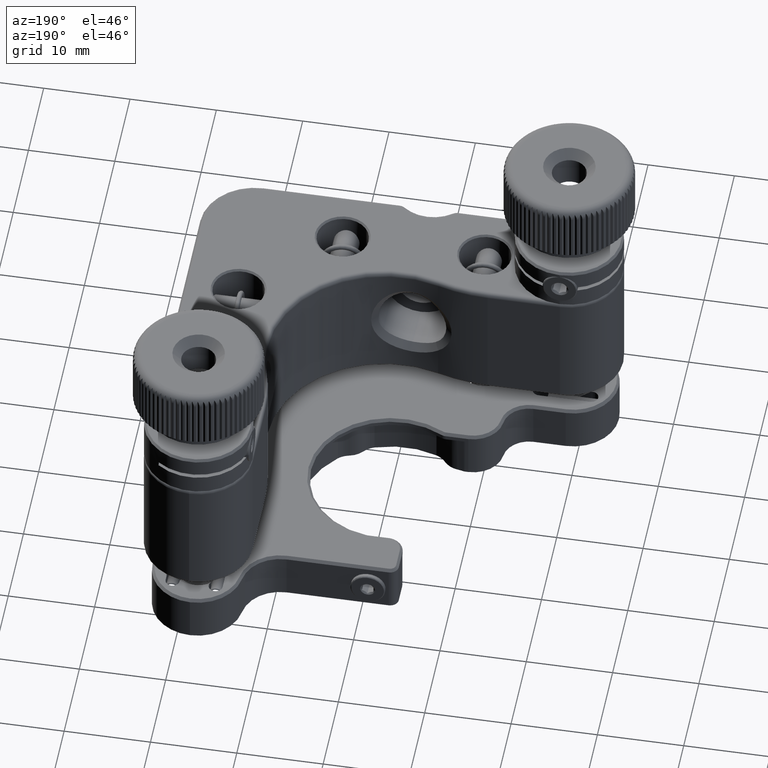
[diagram: clean part render]
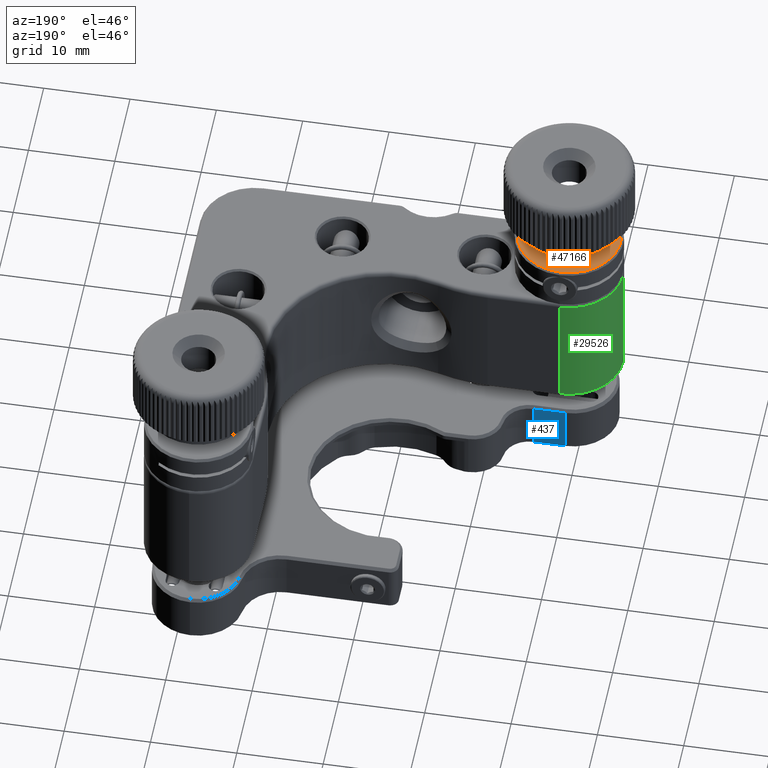
[diagram: same view with three faces highlighted in distinct colors, each labeled with its STEP entity id]
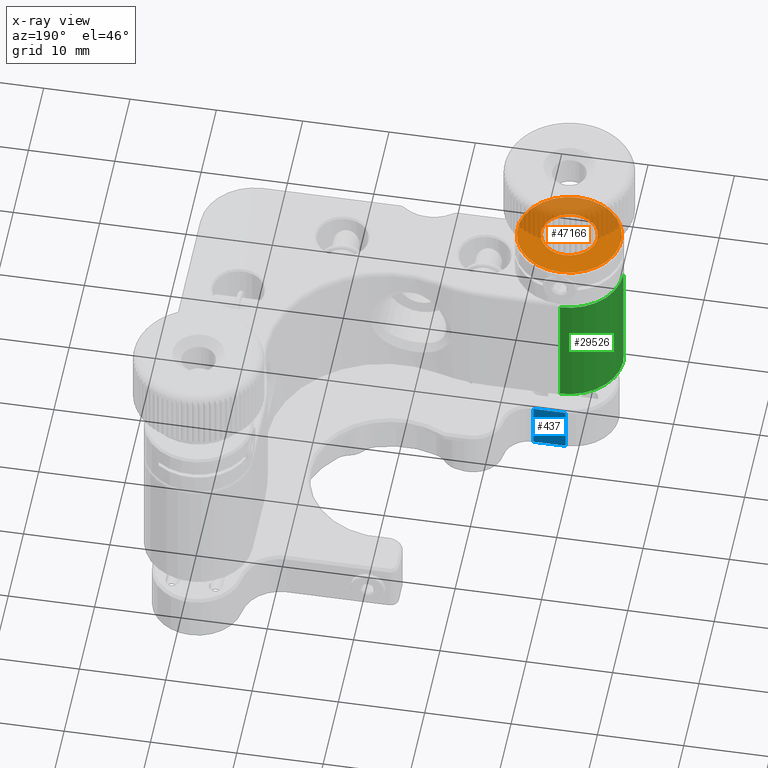
[diagram: x-ray of the same camera — body ghosted, the three highlighted faces saturated]
A machine part, auxiliary view with three faces highlighted in distinct colors.
The next image is the same camera in x-ray (body ghosted, the three faces saturated) — at least one of them is partly hidden behind the body in this view.
Their STEP definitions:

[orange] entity #47166 — the highlighted planar face has unit normal (0, 0, -1).
#3765 = EDGE_CURVE ( 'NONE', #31792, #13980, #12542, .T. ) ;
#4017 = AXIS2_PLACEMENT_3D ( 'NONE', #32181, #13321, #31568 ) ;
#5262 = CIRCLE ( 'NONE', #53810, 5.999999999999998224 ) ;
#7080 = EDGE_LOOP ( 'NONE', ( #33061, #32872 ) ) ;
#9874 = VERTEX_POINT ( 'NONE', #16946 ) ;
#10449 = EDGE_CURVE ( 'NONE', #9874, #48087, #5262, .T. ) ;
#10770 = EDGE_LOOP ( 'NONE', ( #19925, #50802 ) ) ;
#12277 = DIRECTION ( 'NONE',  ( 0.003448917964660402468, 0.9999940524647499274, 0.000000000000000000 ) ) ;
#12542 = CIRCLE ( 'NONE', #26850, 3.249999999999992450 ) ;
#13321 = DIRECTION ( 'NONE',  ( 0.000000000000000000, 0.000000000000000000, -1.000000000000000000 ) ) ;
#13601 = PLANE ( 'NONE',  #4017 ) ;
#13980 = VERTEX_POINT ( 'NONE', #33353 ) ;
#16746 = DIRECTION ( 'NONE',  ( 0.000000000000000000, 0.000000000000000000, -1.000000000000000000 ) ) ;
#16946 = CARTESIAN_POINT ( 'NONE',  ( -18.27069350778795709, -24.24996431478848535, 12.50000000000000000 ) ) ;
#17472 = DIRECTION ( 'NONE',  ( 0.003448917964659950573, 0.9999940524647499274, 0.000000000000000000 ) ) ;
#18435 = AXIS2_PLACEMENT_3D ( 'NONE', #20934, #16746, #12277 ) ;
#19925 = ORIENTED_EDGE ( 'NONE', *, *, #25062, .T. ) ;
#20934 = CARTESIAN_POINT ( 'NONE',  ( -18.25000000000000000, -18.24999999999998934, 12.50000000000000000 ) ) ;
#23160 = FACE_OUTER_BOUND ( 'NONE', #10770, .T. ) ;
#25062 = EDGE_CURVE ( 'NONE', #48087, #9874, #51876, .T. ) ;
#26850 = AXIS2_PLACEMENT_3D ( 'NONE', #45231, #54711, #58042 ) ;
#27041 = DIRECTION ( 'NONE',  ( 0.003448917964659950573, 0.9999940524647499274, 0.000000000000000000 ) ) ;
#28545 = CARTESIAN_POINT ( 'NONE',  ( -18.22930649221203936, -12.25003568521149155, 12.50000000000000000 ) ) ;
#31568 = DIRECTION ( 'NONE',  ( 0.003448917964660035574, 0.9999940524647498163, 0.000000000000000000 ) ) ;
#31792 = VERTEX_POINT ( 'NONE', #58842 ) ;
#32181 = CARTESIAN_POINT ( 'NONE',  ( -18.27155573727912596, -24.49996282790467461, 12.50000000000000000 ) ) ;
#32872 = ORIENTED_EDGE ( 'NONE', *, *, #44651, .T. ) ;
#33009 = CARTESIAN_POINT ( 'NONE',  ( -18.25000000000000000, -18.24999999999998934, 12.50000000000000000 ) ) ;
#33061 = ORIENTED_EDGE ( 'NONE', *, *, #3765, .T. ) ;
#33353 = CARTESIAN_POINT ( 'NONE',  ( -18.26120898338514564, -21.49998067051042128, 12.50000000000000000 ) ) ;
#41626 = DIRECTION ( 'NONE',  ( -0.000000000000000000, -0.000000000000000000, 1.000000000000000000 ) ) ;
#43222 = CIRCLE ( 'NONE', #18435, 3.249999999999992450 ) ;
#44651 = EDGE_CURVE ( 'NONE', #13980, #31792, #43222, .T. ) ;
#44671 = DIRECTION ( 'NONE',  ( -0.000000000000000000, -0.000000000000000000, 1.000000000000000000 ) ) ;
#44677 = FACE_BOUND ( 'NONE', #7080, .T. ) ;
#45231 = CARTESIAN_POINT ( 'NONE',  ( -18.25000000000000000, -18.24999999999998934, 12.50000000000000000 ) ) ;
#47166 = ADVANCED_FACE ( 'NONE', ( #23160, #44677 ), #13601, .F. ) ;
#48087 = VERTEX_POINT ( 'NONE', #28545 ) ;
#49682 = CARTESIAN_POINT ( 'NONE',  ( -18.25000000000000000, -18.24999999999998934, 12.50000000000000000 ) ) ;
#50802 = ORIENTED_EDGE ( 'NONE', *, *, #10449, .T. ) ;
#50942 = AXIS2_PLACEMENT_3D ( 'NONE', #49682, #44671, #17472 ) ;
#51876 = CIRCLE ( 'NONE', #50942, 5.999999999999998224 ) ;
#53810 = AXIS2_PLACEMENT_3D ( 'NONE', #33009, #41626, #27041 ) ;
#54711 = DIRECTION ( 'NONE',  ( 0.000000000000000000, 0.000000000000000000, -1.000000000000000000 ) ) ;
#58042 = DIRECTION ( 'NONE',  ( 0.003448917964660402468, 0.9999940524647499274, 0.000000000000000000 ) ) ;
#58842 = CARTESIAN_POINT ( 'NONE',  ( -18.23879101661485436, -15.00001932948955918, 12.50000000000000000 ) ) ;

[blue] entity #437 — the highlighted planar face has unit normal (-0, -1, -0).
#437 = ADVANCED_FACE ( 'NONE', ( #29866 ), #2651, .F. ) ;
#2051 = CARTESIAN_POINT ( 'NONE',  ( -23.99999999999999289, -12.99999999999994493, -11.29999999999999538 ) ) ;
#2651 = PLANE ( 'NONE',  #48368 ) ;
#2984 = CARTESIAN_POINT ( 'NONE',  ( -18.74999999999998579, -12.99999999999995381, -11.29999999999999716 ) ) ;
#7409 = DIRECTION ( 'NONE',  ( -1.787150674361884632E-15, -1.000000000000000000, -8.979424329623675569E-17 ) ) ;
#7880 = EDGE_CURVE ( 'NONE', #58281, #28675, #29313, .T. ) ;
#8824 = VECTOR ( 'NONE', #42933, 1000.000000000000000 ) ;
#9897 = VERTEX_POINT ( 'NONE', #26510 ) ;
#10421 = LINE ( 'NONE', #51271, #39775 ) ;
#11352 = EDGE_CURVE ( 'NONE', #22333, #58281, #40095, .T. ) ;
#14011 = EDGE_LOOP ( 'NONE', ( #52937, #25498, #54125, #57591 ) ) ;
#15466 = DIRECTION ( 'NONE',  ( -1.631065077482391831E-16, 8.979424329623703919E-17, -1.000000000000000000 ) ) ;
#15708 = EDGE_CURVE ( 'NONE', #9897, #22333, #10421, .T. ) ;
#18421 = CARTESIAN_POINT ( 'NONE',  ( -18.74999999999998579, -12.99999999999995381, -16.69999999999998508 ) ) ;
#19988 = CARTESIAN_POINT ( 'NONE',  ( -18.74999999999998579, -12.99999999999995381, -10.99999999999999645 ) ) ;
#22333 = VERTEX_POINT ( 'NONE', #59044 ) ;
#22792 = CARTESIAN_POINT ( 'NONE',  ( -18.74999999999998579, -12.99999999999995381, -16.69999999999998508 ) ) ;
#25498 = ORIENTED_EDGE ( 'NONE', *, *, #27312, .T. ) ;
#25604 = DIRECTION ( 'NONE',  ( 1.000000000000000000, -1.787150674361884632E-15, -1.631065077482393310E-16 ) ) ;
#26510 = CARTESIAN_POINT ( 'NONE',  ( -14.99999999999999467, -12.99999999999995737, -11.29999999999999716 ) ) ;
#27312 = EDGE_CURVE ( 'NONE', #28675, #9897, #37897, .T. ) ;
#28675 = VERTEX_POINT ( 'NONE', #2984 ) ;
#29313 = LINE ( 'NONE', #19988, #8824 ) ;
#29866 = FACE_OUTER_BOUND ( 'NONE', #14011, .T. ) ;
#33154 = DIRECTION ( 'NONE',  ( 1.000000000000000000, -1.787150674361884632E-15, -1.631065077482393310E-16 ) ) ;
#37897 = LINE ( 'NONE', #2051, #49091 ) ;
#39775 = VECTOR ( 'NONE', #15466, 1000.000000000000000 ) ;
#40095 = LINE ( 'NONE', #22792, #48019 ) ;
#42933 = DIRECTION ( 'NONE',  ( 1.631065077482391831E-16, -8.979424329623703919E-17, 1.000000000000000000 ) ) ;
#48019 = VECTOR ( 'NONE', #58262, 1000.000000000000000 ) ;
#48368 = AXIS2_PLACEMENT_3D ( 'NONE', #57215, #7409, #25604 ) ;
#49091 = VECTOR ( 'NONE', #33154, 1000.000000000000000 ) ;
#51271 = CARTESIAN_POINT ( 'NONE',  ( -14.99999999999999467, -12.99999999999995737, -10.99999999999999645 ) ) ;
#52937 = ORIENTED_EDGE ( 'NONE', *, *, #7880, .T. ) ;
#54125 = ORIENTED_EDGE ( 'NONE', *, *, #15708, .T. ) ;
#57215 = CARTESIAN_POINT ( 'NONE',  ( -23.99999999999999289, -12.99999999999994493, -10.99999999999999467 ) ) ;
#57591 = ORIENTED_EDGE ( 'NONE', *, *, #11352, .T. ) ;
#58262 = DIRECTION ( 'NONE',  ( -1.000000000000000000, 1.787150674361884632E-15, 1.631065077482393310E-16 ) ) ;
#58281 = VERTEX_POINT ( 'NONE', #18421 ) ;
#59044 = CARTESIAN_POINT ( 'NONE',  ( -14.99999999999999645, -12.99999999999995737, -16.69999999999998508 ) ) ;

[green] entity #29526 — the highlighted cylindrical surface (partial cylindrical patch) has radius 6.25 mm, axis along (0, 0, 1).
#497 = DIRECTION ( 'NONE',  ( 1.000000000000000000, 0.000000000000000000, 0.000000000000000000 ) ) ;
#2201 = VERTEX_POINT ( 'NONE', #17549 ) ;
#3857 = DIRECTION ( 'NONE',  ( 1.000000000000000000, 0.000000000000000000, 0.000000000000000000 ) ) ;
#4348 = ORIENTED_EDGE ( 'NONE', *, *, #5736, .F. ) ;
#4703 = CYLINDRICAL_SURFACE ( 'NONE', #51211, 6.250000000000000000 ) ;
#4960 = EDGE_CURVE ( 'NONE', #20389, #14100, #42141, .T. ) ;
#5581 = LINE ( 'NONE', #10340, #37033 ) ;
#5736 = EDGE_CURVE ( 'NONE', #2201, #5947, #5581, .T. ) ;
#5947 = VERTEX_POINT ( 'NONE', #38031 ) ;
#8290 = FACE_OUTER_BOUND ( 'NONE', #38087, .T. ) ;
#8615 = CARTESIAN_POINT ( 'NONE',  ( -18.24999999999999645, -18.25000000000000355, 6.999999999999999112 ) ) ;
#9924 = DIRECTION ( 'NONE',  ( 0.000000000000000000, -0.000000000000000000, 1.000000000000000000 ) ) ;
#10340 = CARTESIAN_POINT ( 'NONE',  ( -18.24999999999999645, -12.00000000000000000, -7.500000000000000000 ) ) ;
#12331 = ORIENTED_EDGE ( 'NONE', *, *, #52543, .T. ) ;
#14100 = VERTEX_POINT ( 'NONE', #45279 ) ;
#14202 = DIRECTION ( 'NONE',  ( 0.000000000000000000, 0.000000000000000000, 1.000000000000000000 ) ) ;
#14672 = CARTESIAN_POINT ( 'NONE',  ( -24.49999999999999645, -18.24999999999999289, 7.500000000000000000 ) ) ;
#17549 = CARTESIAN_POINT ( 'NONE',  ( -18.24999999999999645, -12.00000000000000000, -7.200000000000000178 ) ) ;
#17932 = ORIENTED_EDGE ( 'NONE', *, *, #34366, .T. ) ;
#20389 = VERTEX_POINT ( 'NONE', #49997 ) ;
#26981 = CIRCLE ( 'NONE', #28920, 6.250000000000000000 ) ;
#28311 = CARTESIAN_POINT ( 'NONE',  ( -18.24999999999999645, -18.25000000000000355, -7.500000000000000000 ) ) ;
#28356 = ORIENTED_EDGE ( 'NONE', *, *, #4960, .T. ) ;
#28920 = AXIS2_PLACEMENT_3D ( 'NONE', #8615, #50033, #3857 ) ;
#29526 = ADVANCED_FACE ( 'NONE', ( #8290 ), #4703, .T. ) ;
#32195 = DIRECTION ( 'NONE',  ( 0.000000000000000000, 0.000000000000000000, 1.000000000000000000 ) ) ;
#32749 = AXIS2_PLACEMENT_3D ( 'NONE', #33891, #46657, #55584 ) ;
#33891 = CARTESIAN_POINT ( 'NONE',  ( -18.24999999999999645, -18.25000000000000355, -7.200000000000000178 ) ) ;
#34366 = EDGE_CURVE ( 'NONE', #2201, #20389, #52663, .T. ) ;
#37033 = VECTOR ( 'NONE', #14202, 1000.000000000000000 ) ;
#38031 = CARTESIAN_POINT ( 'NONE',  ( -18.24999999999999645, -12.00000000000000000, 6.999999999999999112 ) ) ;
#38087 = EDGE_LOOP ( 'NONE', ( #4348, #17932, #28356, #12331 ) ) ;
#42141 = LINE ( 'NONE', #14672, #44409 ) ;
#44409 = VECTOR ( 'NONE', #9924, 1000.000000000000000 ) ;
#45279 = CARTESIAN_POINT ( 'NONE',  ( -24.49999999999999645, -18.24999999999999289, 6.999999999999999112 ) ) ;
#46657 = DIRECTION ( 'NONE',  ( -0.000000000000000000, 0.000000000000000000, 1.000000000000000000 ) ) ;
#49997 = CARTESIAN_POINT ( 'NONE',  ( -24.49999999999999645, -18.24999999999999289, -7.200000000000000178 ) ) ;
#50033 = DIRECTION ( 'NONE',  ( 0.000000000000000000, -0.000000000000000000, -1.000000000000000000 ) ) ;
#51211 = AXIS2_PLACEMENT_3D ( 'NONE', #28311, #32195, #497 ) ;
#52543 = EDGE_CURVE ( 'NONE', #14100, #5947, #26981, .T. ) ;
#52663 = CIRCLE ( 'NONE', #32749, 6.250000000000000000 ) ;
#55584 = DIRECTION ( 'NONE',  ( 1.000000000000000000, 0.000000000000000000, 0.000000000000000000 ) ) ;